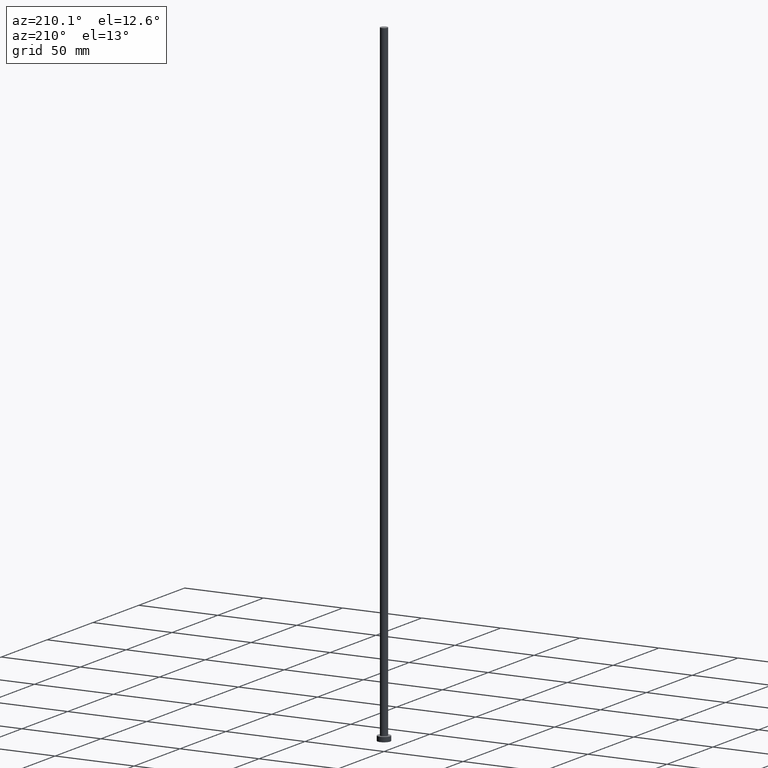
[diagram: clean part render]
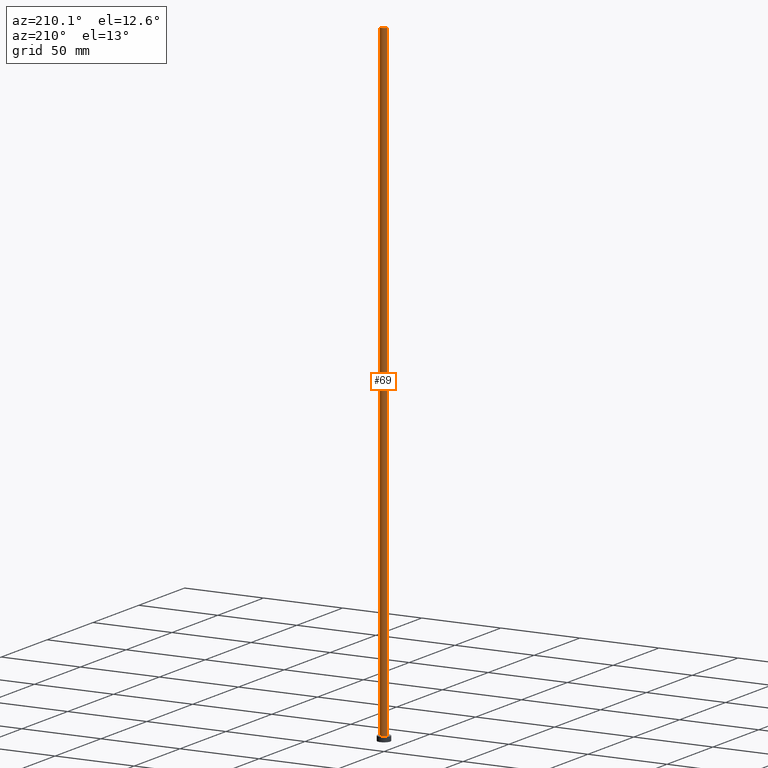
[diagram: same view with one face highlighted and labeled with its STEP entity id]
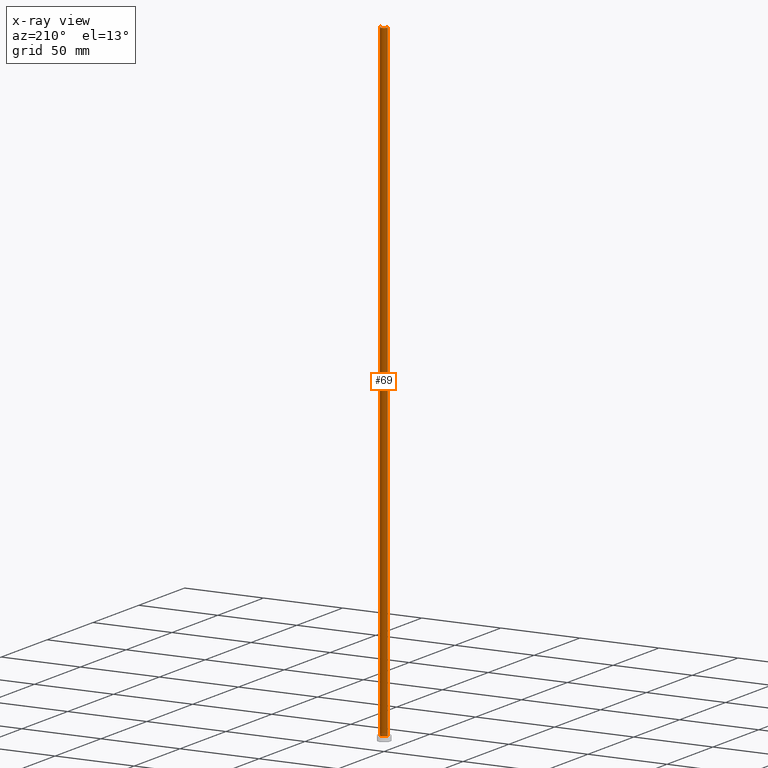
[diagram: x-ray of the same camera — body ghosted, the highlighted face saturated]
A machine part, auxiliary view. The second image highlights one B-rep face of the part: STEP entity #69.
The next image is the same camera in x-ray: the body ghosted, the highlighted face saturated — about 0% of this face is hidden behind the body in this view.
In plain terms, the highlighted cylindrical surface (edge-blend (fillet) strip) has radius 2.25 mm, axis along (-0, -0, -1).
Its self-contained STEP definition (entity closure, byte-faithful):
#16 = LINE ( 'NONE', #90, #196 ) ;
#18 = AXIS2_PLACEMENT_3D ( 'NONE', #146, #101, #204 ) ;
#31 = VERTEX_POINT ( 'NONE', #161 ) ;
#43 = DIRECTION ( 'NONE',  ( -0.000000000000000000, -0.000000000000000000, -1.000000000000000000 ) ) ;
#45 = CIRCLE ( 'NONE', #58, 2.250000000000000000 ) ;
#47 = FACE_OUTER_BOUND ( 'NONE', #48, .T. ) ;
#48 = EDGE_LOOP ( 'NONE', ( #249, #82, #104, #170 ) ) ;
#52 = VERTEX_POINT ( 'NONE', #75 ) ;
#57 = CARTESIAN_POINT ( 'NONE',  ( 2.250000000000000000, 2.755455298081544285E-16, 3.000000000000000000 ) ) ;
#58 = AXIS2_PLACEMENT_3D ( 'NONE', #212, #191, #110 ) ;
#69 = ADVANCED_FACE ( 'NONE', ( #47 ), #135, .T. ) ;
#75 = CARTESIAN_POINT ( 'NONE',  ( 2.250000000000000000, 2.755455298081544285E-16, 400.0000000000000000 ) ) ;
#77 = DIRECTION ( 'NONE',  ( -1.000000000000000000, 0.000000000000000000, 0.000000000000000000 ) ) ;
#82 = ORIENTED_EDGE ( 'NONE', *, *, #255, .T. ) ;
#90 = CARTESIAN_POINT ( 'NONE',  ( -2.250000000000000000, 0.000000000000000000, 400.0000000000000000 ) ) ;
#95 = EDGE_CURVE ( 'NONE', #113, #211, #227, .T. ) ;
#101 = DIRECTION ( 'NONE',  ( 0.000000000000000000, 0.000000000000000000, 1.000000000000000000 ) ) ;
#104 = ORIENTED_EDGE ( 'NONE', *, *, #95, .T. ) ;
#110 = DIRECTION ( 'NONE',  ( 1.000000000000000000, 0.000000000000000000, 0.000000000000000000 ) ) ;
#112 = LINE ( 'NONE', #130, #243 ) ;
#113 = VERTEX_POINT ( 'NONE', #57 ) ;
#126 = AXIS2_PLACEMENT_3D ( 'NONE', #223, #147, #77 ) ;
#130 = CARTESIAN_POINT ( 'NONE',  ( 2.250000000000000000, 2.755455298081544285E-16, 400.0000000000000000 ) ) ;
#135 = CYLINDRICAL_SURFACE ( 'NONE', #126, 2.250000000000000000 ) ;
#146 = CARTESIAN_POINT ( 'NONE',  ( 0.000000000000000000, 0.000000000000000000, 3.000000000000000000 ) ) ;
#147 = DIRECTION ( 'NONE',  ( -0.000000000000000000, -0.000000000000000000, -1.000000000000000000 ) ) ;
#149 = EDGE_CURVE ( 'NONE', #31, #211, #16, .T. ) ;
#161 = CARTESIAN_POINT ( 'NONE',  ( -2.250000000000000000, 0.000000000000000000, 400.0000000000000000 ) ) ;
#170 = ORIENTED_EDGE ( 'NONE', *, *, #149, .F. ) ;
#191 = DIRECTION ( 'NONE',  ( 0.000000000000000000, 0.000000000000000000, 1.000000000000000000 ) ) ;
#196 = VECTOR ( 'NONE', #229, 1000.000000000000000 ) ;
#204 = DIRECTION ( 'NONE',  ( 1.000000000000000000, 0.000000000000000000, 0.000000000000000000 ) ) ;
#209 = EDGE_CURVE ( 'NONE', #52, #31, #45, .T. ) ;
#211 = VERTEX_POINT ( 'NONE', #230 ) ;
#212 = CARTESIAN_POINT ( 'NONE',  ( 0.000000000000000000, 0.000000000000000000, 400.0000000000000000 ) ) ;
#223 = CARTESIAN_POINT ( 'NONE',  ( 0.000000000000000000, 0.000000000000000000, 400.0000000000000000 ) ) ;
#227 = CIRCLE ( 'NONE', #18, 2.250000000000000000 ) ;
#229 = DIRECTION ( 'NONE',  ( -0.000000000000000000, -0.000000000000000000, -1.000000000000000000 ) ) ;
#230 = CARTESIAN_POINT ( 'NONE',  ( -2.250000000000000000, 0.000000000000000000, 3.000000000000000000 ) ) ;
#243 = VECTOR ( 'NONE', #43, 1000.000000000000000 ) ;
#249 = ORIENTED_EDGE ( 'NONE', *, *, #209, .F. ) ;
#255 = EDGE_CURVE ( 'NONE', #52, #113, #112, .T. ) ;